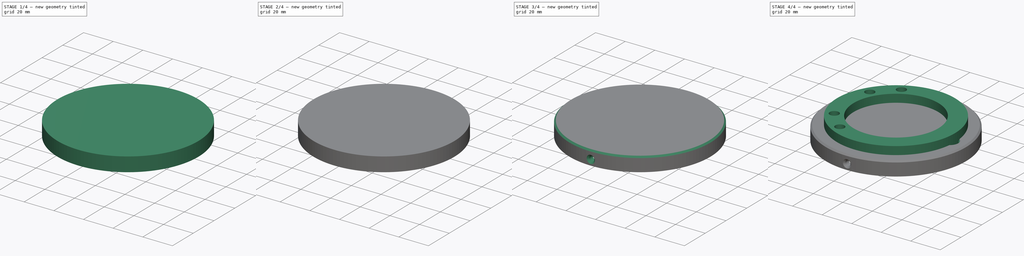
[diagram: build sequence overview — one tinted view per stage of 4, left to right]
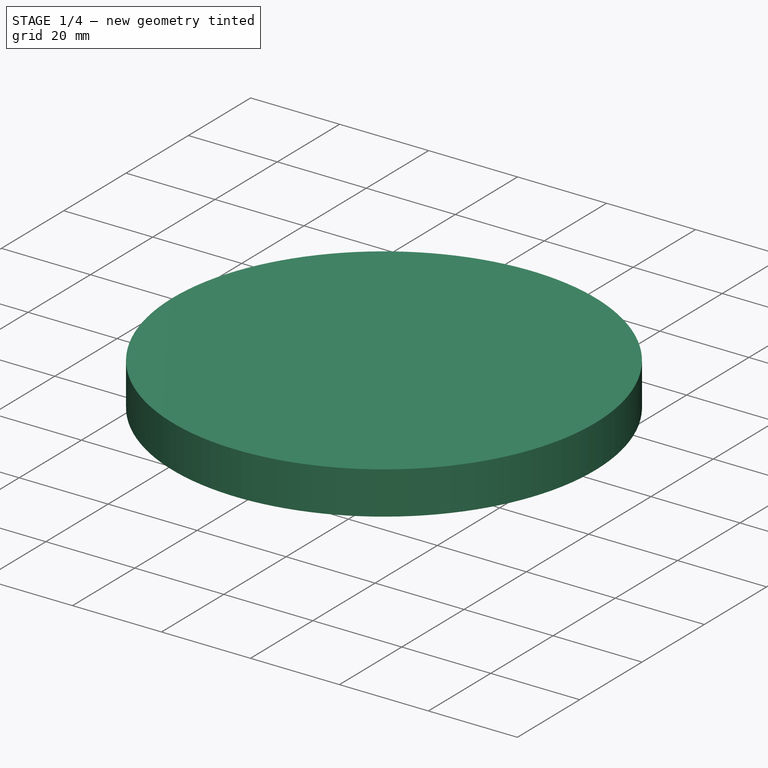
[diagram: stage 1 of 4 — iso view after this stage's code; geometry added in this stage tinted green]
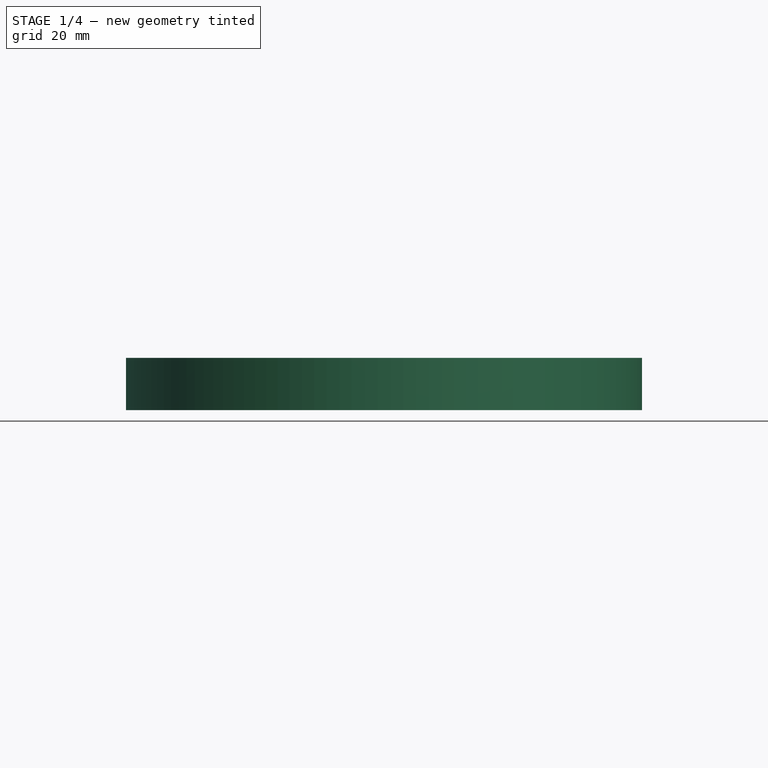
[diagram: stage 1 of 4 — front view after this stage's code; geometry added in this stage tinted green]
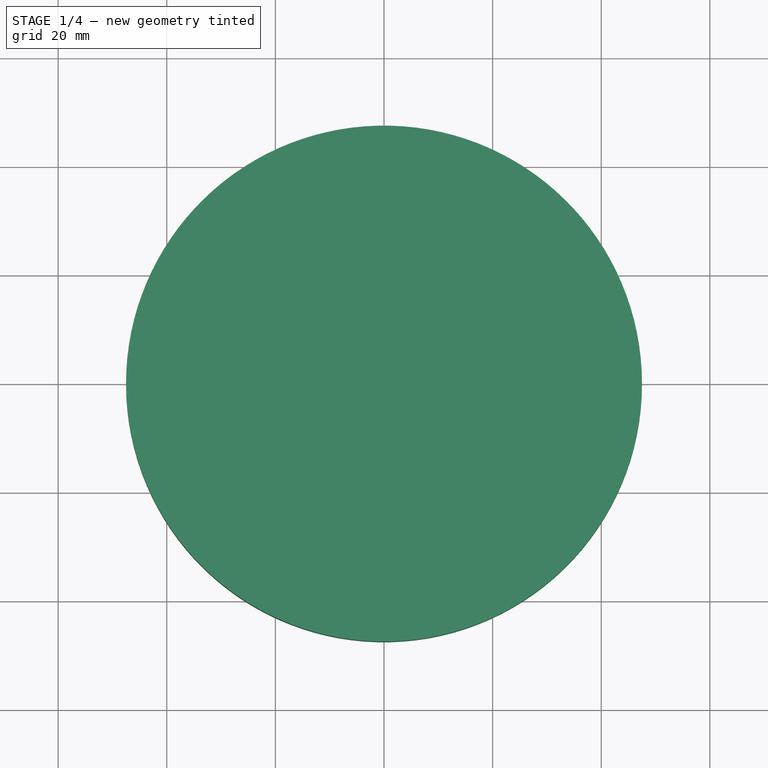
[diagram: stage 1 of 4 — top view after this stage's code; geometry added in this stage tinted green]
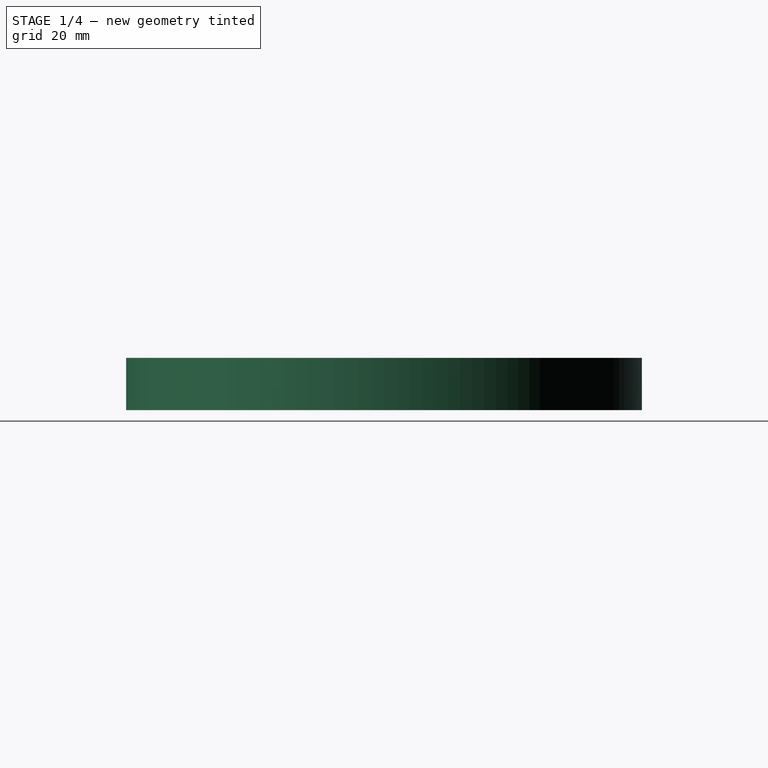
[diagram: stage 1 of 4 — right view after this stage's code; geometry added in this stage tinted green]
FCSTD DOCUMENT  (FreeCAD 1.0R39109 (Git))
Label: Bottom Layer Jig
License: All rights reserved
LicenseURL: https://en.wikipedia.org/wiki/All_rights_reserved
objects: Sketcher::SketchObject×9, PartDesign::Pocket×5, PartDesign::Chamfer×5, PartDesign::Plane×4, PartDesign::Pad×4, PartDesign::Body×2, App::VarSet×1
note: 66 computed .brp shape members not serialized (recipe doc carries the construction recipe); baked Part::Feature solids carry a one-line shape summary decoded from their .brp

FEATURE [PartDesign::Body] Body  label="ring_spacer"
  AllowCompound = false
  Group = -> [Sketch,Pad,DatumPlane001,Sketch011,Pocket003]
  Origin = -> Origin
  Placement = pos=(0,0,-12) rot=(0,0,1;0rad)
  Tip = -> Pocket003
FEATURE [App::VarSet] VarSet
  Pipe_thickness = 5
  dowel_dia = 6.2
  fillet_radius = 1.5
  gem_hole_dia = 15.5
  gem_hole_offset = 20
  mdf_thickness = 7.5
  pipe_OD = 90
  rotation_tolerence = 2.5
  servo_leg_height = 24
  servo_length = 23
  servo_width = 12.3
  shaft_width = 9
  test_tube_dia = 17
  tube_inner_dia = 79.9
FEATURE [Sketcher::SketchObject] Sketch012
  ArcFitTolerance = 1e-06
  AttachmentSupport = -> [XY_Plane001]
  FullyConstrained = true
  MakeInternals = false
  MapMode = 5
  expr: Constraints[1] = 95
  sketch-geometry (1):
    g0: Circle CenterX=0 CenterY=0 CenterZ=0 NormalX=0 NormalY=0 NormalZ=1 AngleXU=0 Radius=47.5
  constraints (2):
    c: Coincident(g0,g-1)
    c: Diameter(g0) = 95
FEATURE [PartDesign::Pad] Pad001
  Direction = (0,0,1)
  Length = 2
  Length2 = 10
  Profile = -> Sketch012
  ReferenceAxis = -> Sketch012 [N_Axis]
  Refine = true
  Suppressed = false
  Type = 0
FEATURE [Sketcher::SketchObject] Sketch013
  ArcFitTolerance = 1e-06
  AttachmentSupport = -> [Pad001]
  FullyConstrained = true
  MakeInternals = false
  MapMode = 5
  Placement = pos=(0,0,0) rot=(1,0,0;3.14159rad)
  expr: Constraints[21] = 61.6 mm
  expr: Constraints[3] = 36.875
  sketch-geometry (9):
    g0: Circle CenterX=-4e-16 CenterY=5e-16 CenterZ=0 NormalX=0 NormalY=0 NormalZ=1 AngleXU=0 Radius=30.8
    g1: Circle CenterX=-31.939 CenterY=18.44 CenterZ=0 NormalX=0 NormalY=0 NormalZ=1 AngleXU=0 Radius=2.8
    g2: Circle CenterX=-18.4375 CenterY=31.9347 CenterZ=0 NormalX=0 NormalY=0 NormalZ=1 AngleXU=0 Radius=2.8
    g3: Circle CenterX=-31.939 CenterY=-18.44 CenterZ=0 NormalX=0 NormalY=0 NormalZ=1 AngleXU=0 Radius=2.8
    g4: Circle CenterX=-18.44 CenterY=-31.939 CenterZ=0 NormalX=0 NormalY=0 NormalZ=1 AngleXU=0 Radius=2.8
    g5: LineSegment [constr] StartX=-18.4375 StartY=31.9347 StartZ=0 EndX=-4e-16 EndY=5e-16 EndZ=0
    g6: LineSegment [constr] StartX=-4e-16 StartY=5e-16 StartZ=0 EndX=-18.44 EndY=-31.939 EndZ=0
    g7: LineSegment [constr] StartX=-31.939 StartY=18.44 StartZ=0 EndX=1.8e-15 EndY=6e-16 EndZ=0
    g8: LineSegment [constr] StartX=-4e-16 StartY=5e-16 StartZ=0 EndX=-31.939 EndY=-18.44 EndZ=0
  constraints (22):
    c: Coincident(g0,g-1)
    c: Coincident(g5,g2)
    c: Coincident(g5,g0)
    c: Distance(g5,g5) = 36.875
    c: Angle(g5,g-1,g0) = 1.0472
    c: Coincident(g6,g0)
    c: Coincident(g6,g4)
    c: Distance(g6,g6) = 36.88
    c: Angle(g6,g-1) = 2.0944
    c: Coincident(g7,g1)
    c: Coincident(g7,g0)
    c: Coincident(g8,g0)
    c: Coincident(g8,g3)
    c: Distance(g7,g7) = 36.88
    c: Distance(g8,g8) = 36.88
    c: Angle(g8,g-1) = 2.61799
    c: Angle(g-1,g7) = 2.61799
    c: Diameter(g2) = 5.6
    c: Diameter(g1) = 5.6
    c: Diameter(g3) = 5.6
    c: Diameter(g4) = 5.6
    c: Diameter(g0) = 61.6
FEATURE [PartDesign::Pad] Pad002
  BaseFeature = -> Pad001
  Direction = (0,0,-1)
  Length = 4
  Length2 = 10
  Profile = -> Sketch013
  ReferenceAxis = -> Sketch013 [N_Axis]
  Refine = true
  Suppressed = false
  Type = 0
FEATURE [PartDesign::Chamfer] Chamfer
  Angle = 45
  Base = -> Pad002 [Edge14,Edge12,Edge10,Edge16,Edge18]
  BaseFeature = -> Pad002
  ChamferType = 0
  FlipDirection = false
  Refine = true
  Size = 1
  Size2 = 1
  SupportTransform = false
  Suppressed = false
  UseAllEdges = false
FEATURE [Sketcher::SketchObject] Sketch014
  ArcFitTolerance = 1e-06
  AttachmentSupport = -> [Chamfer]
  FullyConstrained = true
  MakeInternals = false
  MapMode = 5
  Placement = pos=(0,0,0) rot=(1,0,0;3.14159rad)
  sketch-geometry (2):
    g0: Circle CenterX=0 CenterY=0 CenterZ=0 NormalX=0 NormalY=0 NormalZ=1 AngleXU=0 Radius=42.95
    g1: Circle CenterX=0 CenterY=0 CenterZ=0 NormalX=0 NormalY=0 NormalZ=1 AngleXU=0 Radius=47.5
  constraints (4):
    c: Diameter(g0) = 85.9
    c: Coincident(g0,g-1)
    c: Diameter(g1) = 95
    c: Coincident(g1,g0)
FEATURE [PartDesign::Pad] Pad003
  BaseFeature = -> Chamfer
  Direction = (0,0,-1)
  Length = 7.6
  Length2 = 10
  Profile = -> Sketch014
  ReferenceAxis = -> Sketch014 [N_Axis]
  Refine = true
  Suppressed = false
  Type = 0
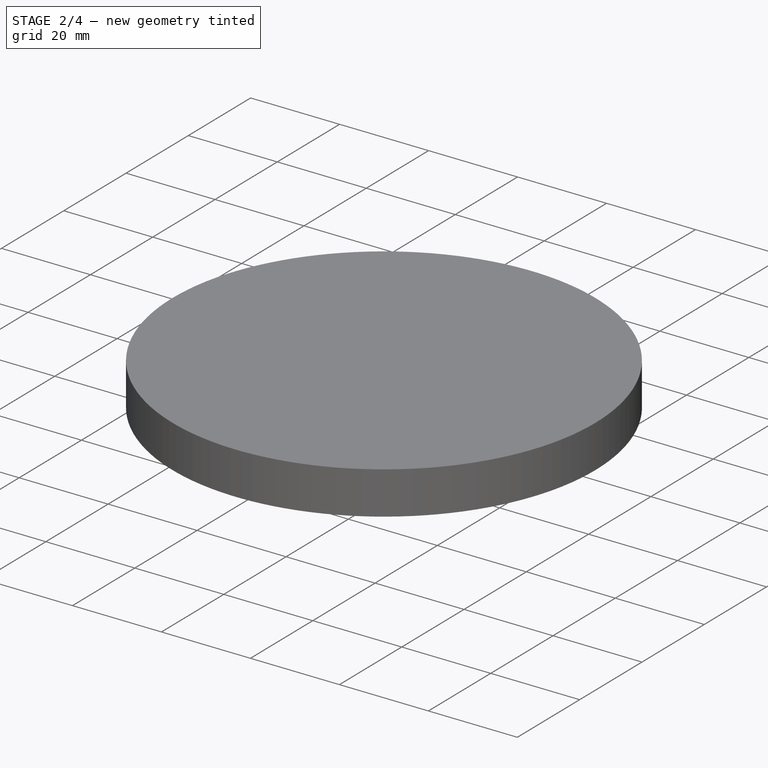
[diagram: stage 2 of 4 — iso view after this stage's code; geometry added in this stage tinted green]
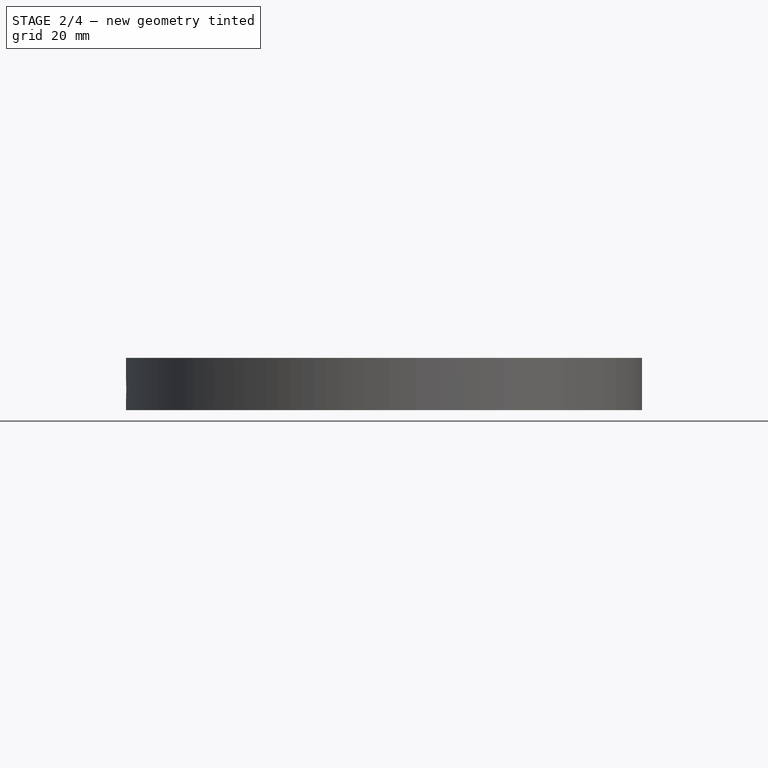
[diagram: stage 2 of 4 — front view after this stage's code; geometry added in this stage tinted green]
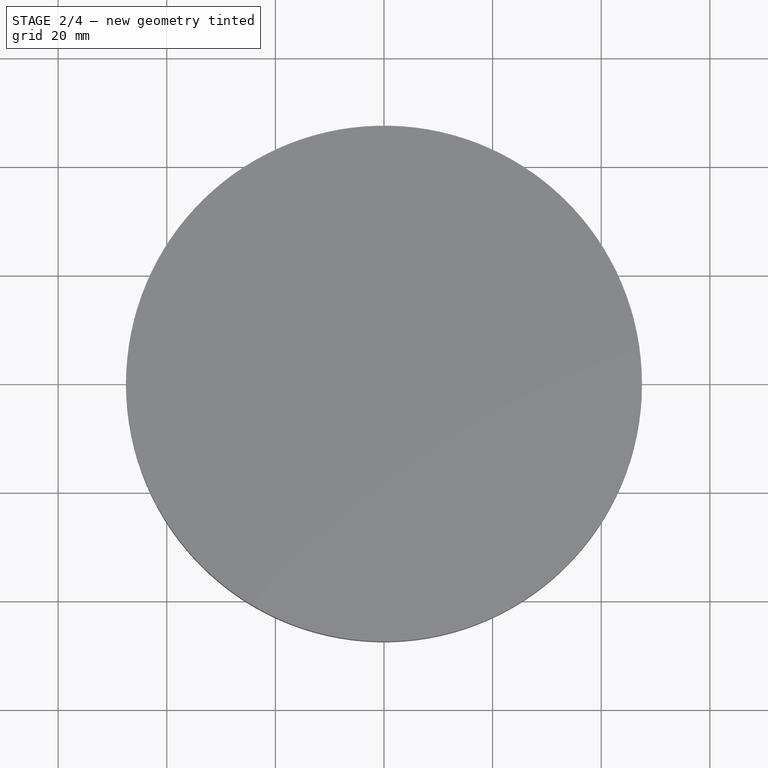
[diagram: stage 2 of 4 — top view after this stage's code; geometry added in this stage tinted green]
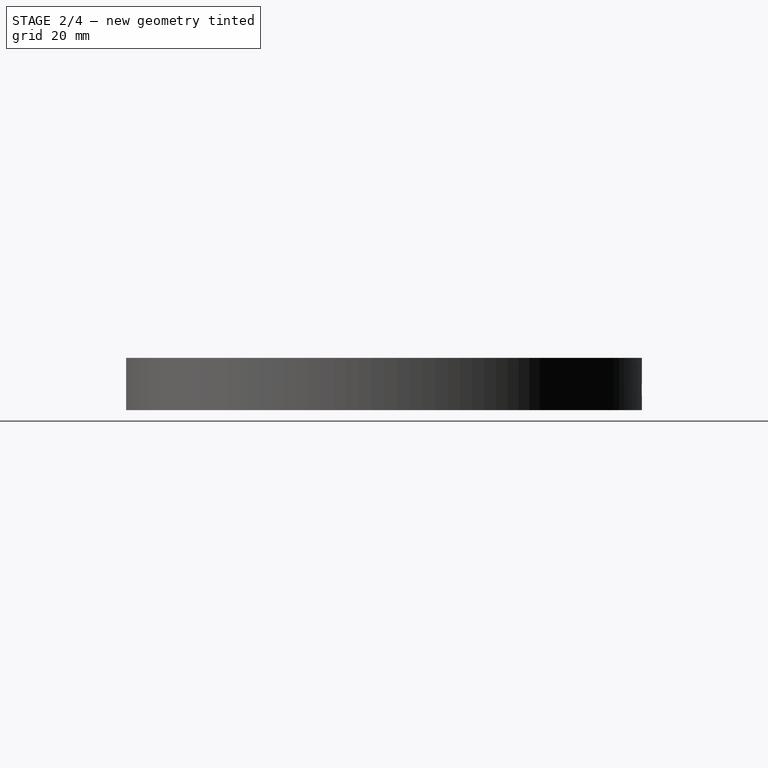
[diagram: stage 2 of 4 — right view after this stage's code; geometry added in this stage tinted green]
FEATURE [PartDesign::Chamfer] Chamfer001
  Angle = 45
  Base = -> Pad003 [Edge15]
  BaseFeature = -> Pad003
  ChamferType = 0
  FlipDirection = false
  Refine = true
  Size = 1
  Size2 = 1
  SupportTransform = false
  Suppressed = false
  UseAllEdges = false
FEATURE [PartDesign::Plane] DatumPlane
  AttachmentOffset = pos=(-50,0,0) rot=(0,1,0;1.5708rad)
  AttachmentSupport = -> [Chamfer001]
  Length = 60
  MapMode = 5
  Placement = pos=(-50,0,-7.6) rot=(0.707107,0,0.707107;3.14159rad)
  ResizeMode = 0
  Width = 60
FEATURE [PartDesign::Plane] DatumPlane002
  AttachmentOffset = pos=(0,50,0) rot=(1,0,0;1.5708rad)
  AttachmentSupport = -> [Chamfer001]
  Length = 60
  MapMode = 5
  Placement = pos=(0,-50,-7.6) rot=(1,0,0;4.71239rad)
  ResizeMode = 0
  Width = 60
FEATURE [PartDesign::Plane] DatumPlane003
  AttachmentOffset = pos=(0,-50,0) rot=(1,0,0;1.5708rad)
  AttachmentSupport = -> [Chamfer001]
  Length = 60
  MapMode = 5
  Placement = pos=(0,50,-7.6) rot=(1,0,0;4.71239rad)
  ResizeMode = 0
  Width = 60
FEATURE [Sketcher::SketchObject] Sketch015
  ArcFitTolerance = 1e-06
  AttachmentSupport = -> [DatumPlane]
  FullyConstrained = true
  MakeInternals = false
  MapMode = 5
  Placement = pos=(-50,0,-7.6) rot=(0.707107,0,0.707107;3.14159rad)
  expr: Constraints[2] = 3.8 mm
  sketch-geometry (1):
    g0: Circle CenterX=3.8 CenterY=0 CenterZ=0 NormalX=0 NormalY=0 NormalZ=1 AngleXU=0 Radius=1.75
  constraints (3):
    c: PointOnObject(g0,g-1)
    c: Diameter(g0) = 3.5
    c: DistanceX(g-1,g0) = 3.8
FEATURE [PartDesign::Pocket] Pocket
  BaseFeature = -> Chamfer001
  Direction = (-1,0,2e-16)
  Length = 15
  Length2 = 5
  Profile = -> Sketch015
  ReferenceAxis = -> Sketch015 [N_Axis]
  Refine = true
  Reversed = true
  Suppressed = false
  Type = 0
FEATURE [Sketcher::SketchObject] Sketch016
  ArcFitTolerance = 1e-06
  AttachmentSupport = -> [DatumPlane003]
  FullyConstrained = true
  MakeInternals = false
  MapMode = 5
  Placement = pos=(0,50,-7.6) rot=(-1,0,0;1.5708rad)
  sketch-geometry (1):
    g0: Circle CenterX=0 CenterY=-3.8 CenterZ=0 NormalX=0 NormalY=0 NormalZ=1 AngleXU=0 Radius=1.75
  constraints (3):
    c: Diameter(g0) = 3.5
    c: PointOnObject(g0,g-2)
    c: DistanceY(g0,g-1) = 3.8
FEATURE [PartDesign::Pocket] Pocket004
  BaseFeature = -> Pocket
  Direction = (0,-1,-2e-16)
  Length = 15
  Length2 = 5
  Profile = -> Sketch016
  ReferenceAxis = -> Sketch016 [N_Axis]
  Refine = true
  Suppressed = false
  Type = 0
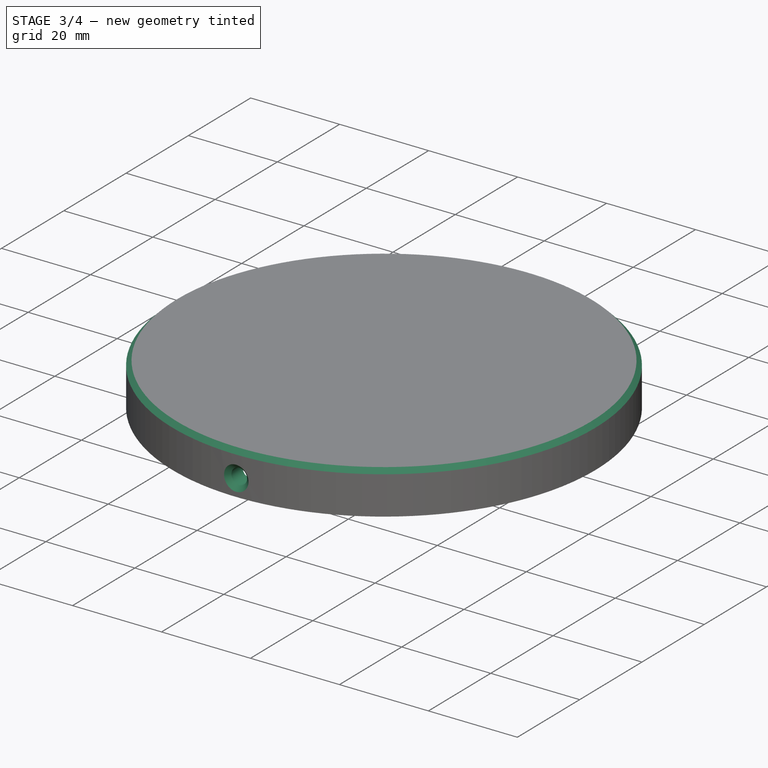
[diagram: stage 3 of 4 — iso view after this stage's code; geometry added in this stage tinted green]
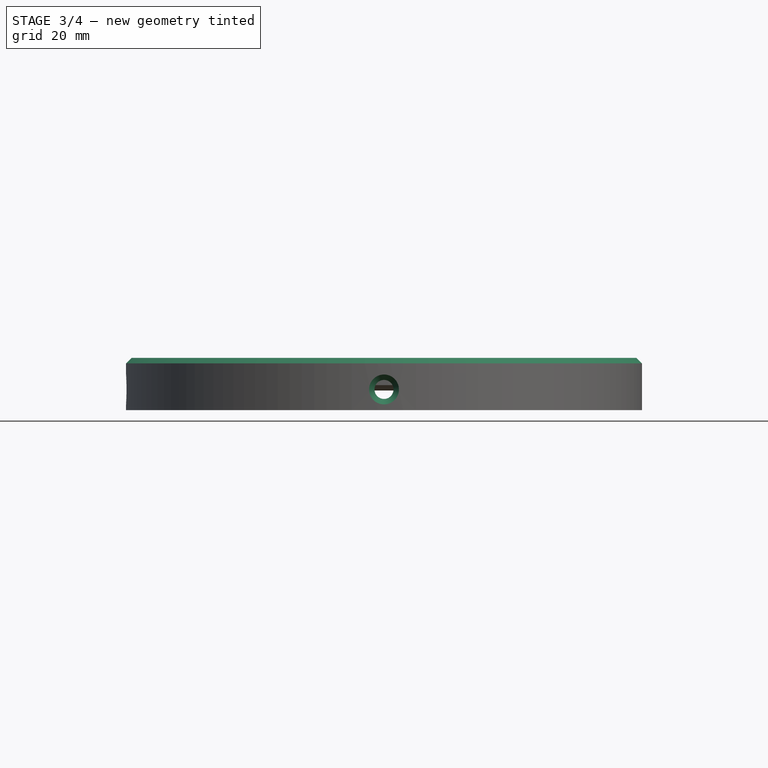
[diagram: stage 3 of 4 — front view after this stage's code; geometry added in this stage tinted green]
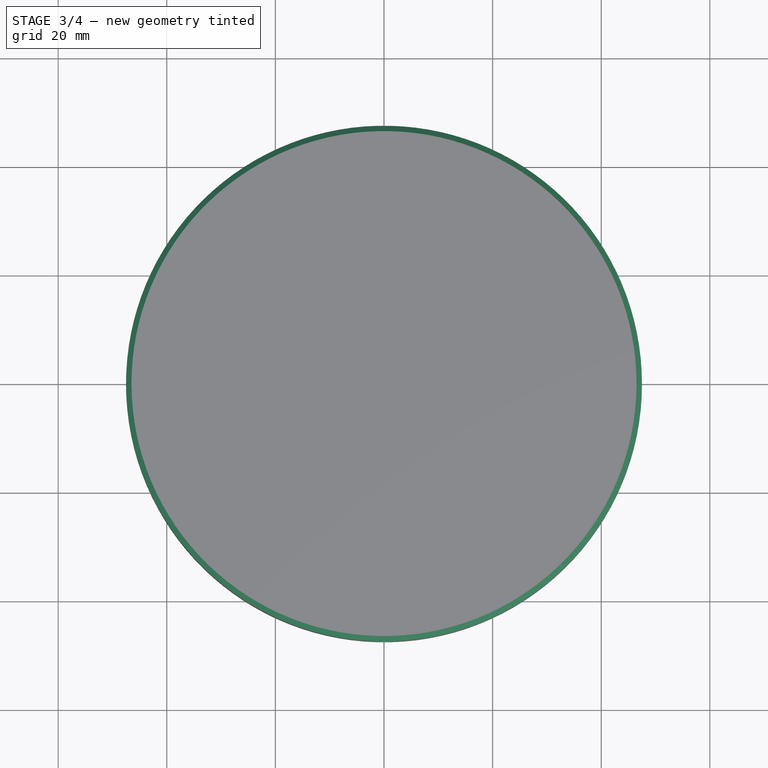
[diagram: stage 3 of 4 — top view after this stage's code; geometry added in this stage tinted green]
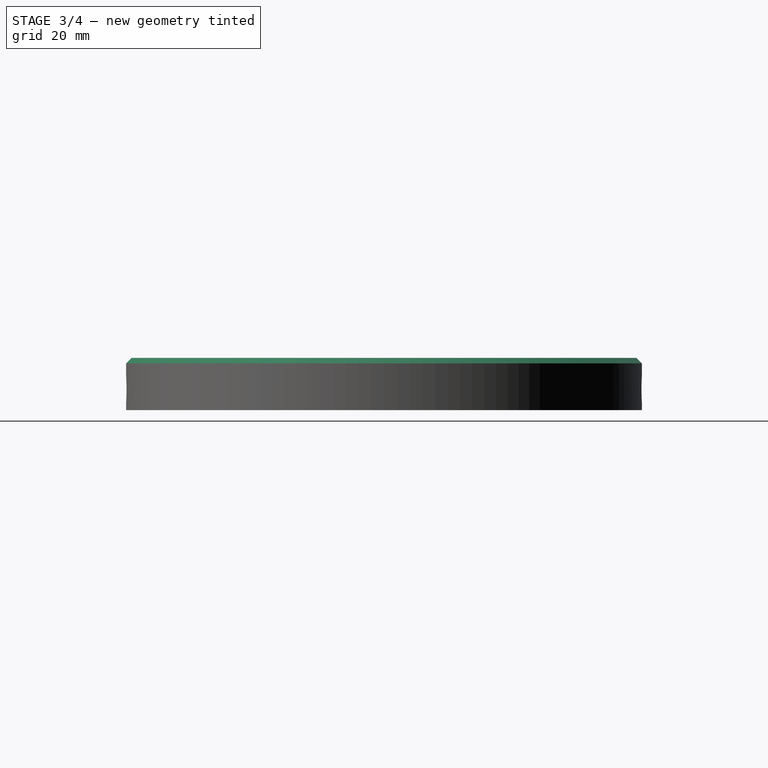
[diagram: stage 3 of 4 — right view after this stage's code; geometry added in this stage tinted green]
FEATURE [Sketcher::SketchObject] Sketch017
  ArcFitTolerance = 1e-06
  AttachmentSupport = -> [DatumPlane002]
  FullyConstrained = true
  MakeInternals = false
  MapMode = 5
  Placement = pos=(0,-50,-7.6) rot=(-1,0,0;1.5708rad)
  sketch-geometry (1):
    g0: Circle CenterX=0 CenterY=-3.8 CenterZ=0 NormalX=0 NormalY=0 NormalZ=1 AngleXU=0 Radius=1.75
  constraints (3):
    c: Diameter(g0) = 3.5
    c: PointOnObject(g0,g-2)
    c: DistanceY(g0,g-1) = 3.8
FEATURE [PartDesign::Pocket] Pocket005
  BaseFeature = -> Pocket004
  Direction = (0,-1,-2e-16)
  Length = 15
  Length2 = 5
  Profile = -> Sketch017
  ReferenceAxis = -> Sketch017 [N_Axis]
  Refine = true
  Reversed = true
  Suppressed = false
  Type = 0
FEATURE [PartDesign::Chamfer] Chamfer002
  Angle = 45
  Base = -> Pocket005 [Edge14,Edge16,Edge18]
  BaseFeature = -> Pocket005
  ChamferType = 0
  FlipDirection = false
  Refine = true
  Size = 1
  Size2 = 1
  SupportTransform = false
  Suppressed = false
  UseAllEdges = false
FEATURE [PartDesign::Chamfer] Chamfer003
  Angle = 45
  Base = -> Chamfer002 [Edge13]
  BaseFeature = -> Chamfer002
  ChamferType = 0
  FlipDirection = false
  Refine = true
  Size = 1
  Size2 = 1
  SupportTransform = false
  Suppressed = false
  UseAllEdges = false
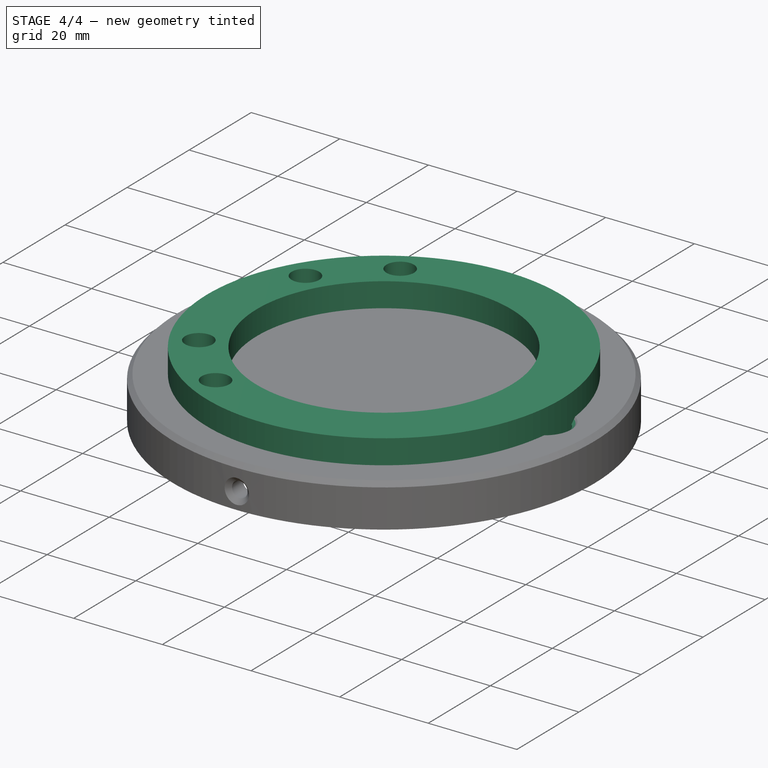
[diagram: stage 4 of 4 — iso view after this stage's code; geometry added in this stage tinted green]
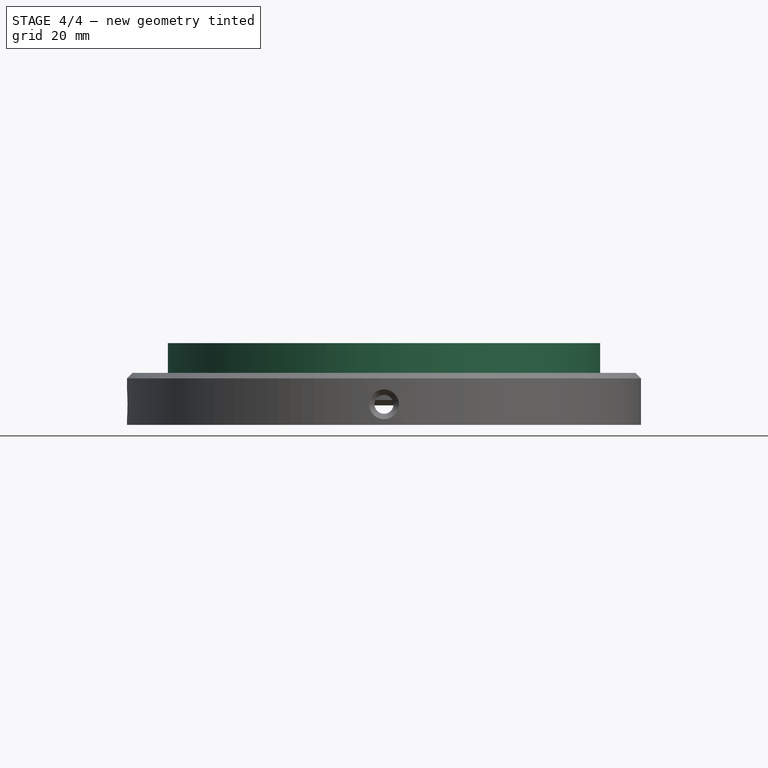
[diagram: stage 4 of 4 — front view after this stage's code; geometry added in this stage tinted green]
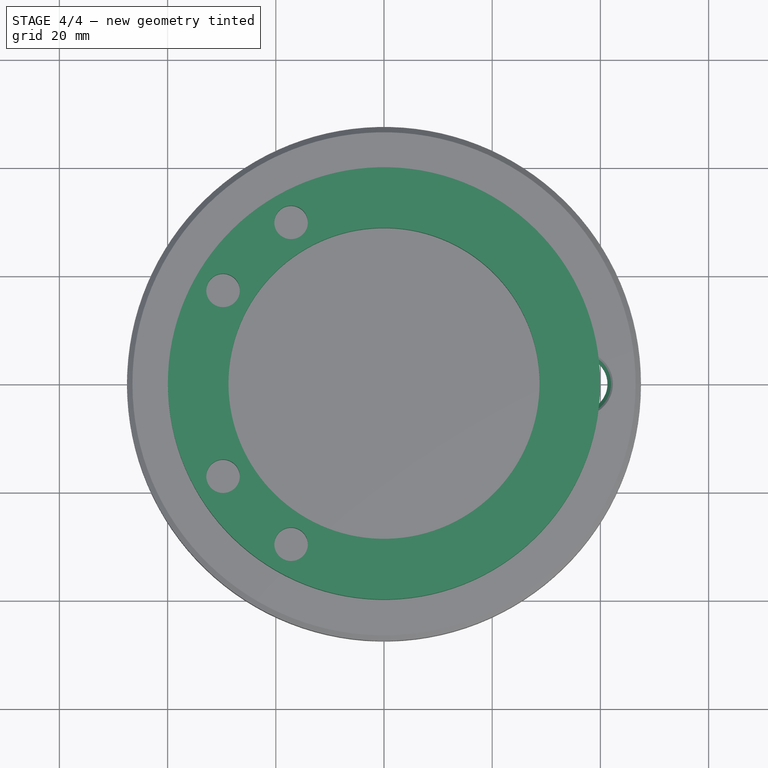
[diagram: stage 4 of 4 — top view after this stage's code; geometry added in this stage tinted green]
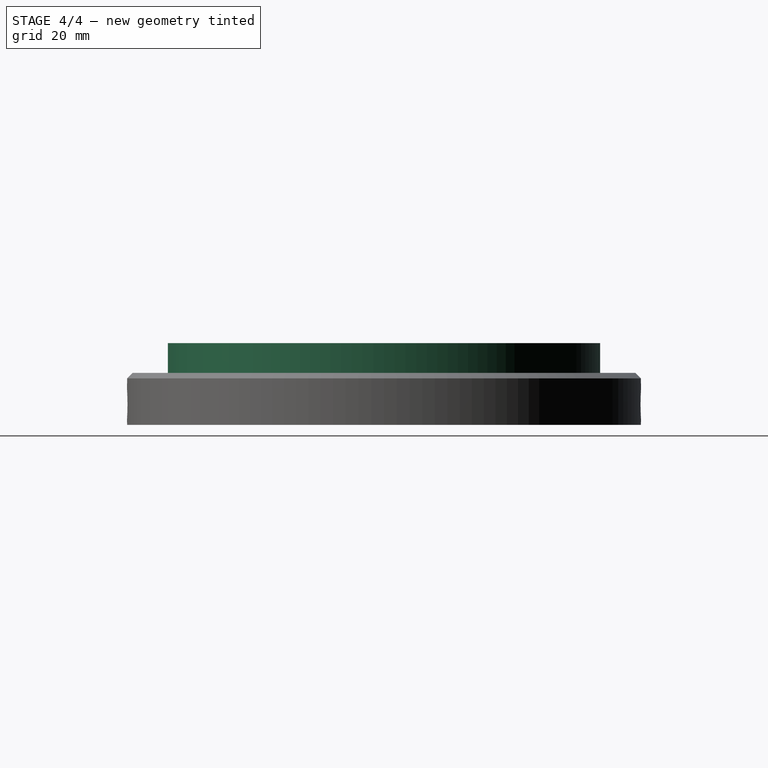
[diagram: stage 4 of 4 — right view after this stage's code; geometry added in this stage tinted green]
FEATURE [PartDesign::Plane] DatumPlane001
  AttachmentOffset = pos=(0,0,7.5) rot=(0,0,1;0rad)
  AttachmentSupport = -> [XY_Plane]
  Length = 95.8527
  MapMode = 5
  Placement = pos=(0,0,7.5) rot=(0,0,1;0rad)
  ResizeMode = 0
  Width = 95.5798
  expr: .AttachmentOffset.Base.z = VarSet.mdf_thickness
FEATURE [Sketcher::SketchObject] Sketch
  ArcFitTolerance = 1e-06
  AttachmentSupport = -> [XY_Plane]
  FullyConstrained = true
  MakeInternals = false
  MapMode = 5
  expr: Constraints[1] = VarSet.tube_inner_dia
  expr: Constraints[3] = VarSet.dowel_dia + 5 mm
  sketch-geometry (2):
    g0: Circle CenterX=0 CenterY=0 CenterZ=0 NormalX=0 NormalY=0 NormalZ=1 AngleXU=0 Radius=39.95
    g1: Circle CenterX=0 CenterY=0 CenterZ=0 NormalX=0 NormalY=0 NormalZ=1 AngleXU=0 Radius=28.75
  constraints (4):
    c: Coincident(g0,g-1)
    c: Diameter(g0) = 79.9
    c: Coincident(g1,g0)
    c: Distance(g1,g0) = 11.2
FEATURE [PartDesign::Pad] Pad
  Direction = (0,0,1)
  Length = 7.5
  Length2 = 10
  Profile = -> Sketch
  ReferenceAxis = -> Sketch [N_Axis]
  Refine = true
  Suppressed = false
  Type = 0
  expr: Length = VarSet.mdf_thickness
FEATURE [Sketcher::SketchObject] Sketch011
  ArcFitTolerance = 1e-06
  AttachmentSupport = -> [DatumPlane001]
  FullyConstrained = true
  MakeInternals = false
  MapMode = 5
  Placement = pos=(0,0,7.5) rot=(0,0,1;0rad)
  expr: Constraints[17] = VarSet.tube_inner_dia / 2 - 2.5 mm - VarSet.dowel_dia / 2
  expr: Constraints[1] = VarSet.dowel_dia
  expr: Constraints[2] = VarSet.tube_inner_dia / 2 - 2.5 mm - VarSet.dowel_dia / 2
  expr: Constraints[6] = VarSet.tube_inner_dia / 2 - 2.5 mm - VarSet.dowel_dia / 2
  sketch-geometry (8):
    g0: Circle [constr] CenterX=-34.35 CenterY=0 CenterZ=0 NormalX=0 NormalY=0 NormalZ=1 AngleXU=0 Radius=3.1
    g1: Circle CenterX=-29.748 CenterY=17.175 CenterZ=0 NormalX=0 NormalY=0 NormalZ=1 AngleXU=0 Radius=3.1
    g2: Circle CenterX=-29.748 CenterY=-17.175 CenterZ=0 NormalX=0 NormalY=0 NormalZ=1 AngleXU=0 Radius=3.1
    g3: LineSegment [constr] StartX=-29.748 StartY=-17.175 StartZ=0 EndX=-4.1e-15 EndY=-4.3e-15 EndZ=0
    g4: Circle CenterX=-17.175 CenterY=29.748 CenterZ=0 NormalX=0 NormalY=0 NormalZ=1 AngleXU=0 Radius=3.1
    g5: Circle CenterX=-17.175 CenterY=-29.748 CenterZ=0 NormalX=0 NormalY=0 NormalZ=1 AngleXU=0 Radius=3.1
    g6: LineSegment [constr] StartX=-17.175 StartY=29.748 StartZ=0 EndX=-3.8e-15 EndY=-4.1e-15 EndZ=0
    g7: LineSegment [constr] StartX=-4.1e-15 StartY=-4.3e-15 StartZ=0 EndX=-17.175 EndY=-29.748 EndZ=0
  constraints (19):
    c: PointOnObject(g0,g-1)
    c: Diameter(g0) = 6.2
    c: Distance(g0,g-2) = 34.35
    c: Equal(g1,g2)
    c: Equal(g2,g0)
    c: Symmetric(g2,g1,g-1)
    c: Distance(g1,g-1) = 34.35
    c: Coincident(g3,g2)
    c: Coincident(g3,g-1)
    c: Angle(g-1,g3) = 0.523599
    c: Equal(g5,g4)
    c: Equal(g4,g2)
    c: Symmetric(g5,g4,g-1)
    c: Coincident(g6,g4)
    c: Coincident(g6,g3)
    c: Coincident(g7,g3)
    c: Coincident(g7,g5)
    c: Distance(g6,g6) = 34.35
    c: Angle(g6,g-1) = 1.0472
FEATURE [PartDesign::Pocket] Pocket003
  BaseFeature = -> Pad
  Direction = (0,0,-1)
  Length = 5
  Length2 = 5
  Profile = -> Sketch011
  ReferenceAxis = -> Sketch011 [N_Axis]
  Refine = true
  Suppressed = false
  Type = 1
FEATURE [Sketcher::SketchObject] Sketch018
  ArcFitTolerance = 1e-06
  AttachmentSupport = -> [Chamfer003]
  FullyConstrained = true
  MakeInternals = false
  MapMode = 5
  Placement = pos=(0,0,0) rot=(1,0,0;3.14159rad)
  sketch-geometry (1):
    g0: Circle CenterX=36.3 CenterY=0 CenterZ=0 NormalX=0 NormalY=0 NormalZ=1 AngleXU=0 Radius=5
  constraints (3):
    c: Diameter(g0) = 10
    c: PointOnObject(g0,g-1)
    c: DistanceX(g-1,g0) = 36.3
FEATURE [PartDesign::Pocket] Pocket006
  BaseFeature = -> Chamfer003
  Direction = (0,0,1)
  Length = 5
  Length2 = 5
  Profile = -> Sketch018
  ReferenceAxis = -> Sketch018 [N_Axis]
  Refine = true
  Suppressed = false
  Type = 0
FEATURE [PartDesign::Chamfer] Chamfer004
  Angle = 45
  Base = -> Pocket006 [Edge16]
  BaseFeature = -> Pocket006
  ChamferType = 0
  FlipDirection = false
  Refine = true
  Size = 1
  Size2 = 1
  SupportTransform = false
  Suppressed = false
  UseAllEdges = false
FEATURE [PartDesign::Body] Body001  label="Jig"
  AllowCompound = false
  Group = -> [Sketch012,Pad001,Sketch013,Pad002,Chamfer,Sketch014,Pad003,Chamfer001,DatumPlane,DatumPlane002,DatumPlane003,Sketch015,Pocket,Sketch016,Pocket004,Sketch017,Pocket005,Chamfer002,Chamfer003,Sketch018,Pocket006,Chamfer004]
  Origin = -> Origin001
  Tip = -> Chamfer004
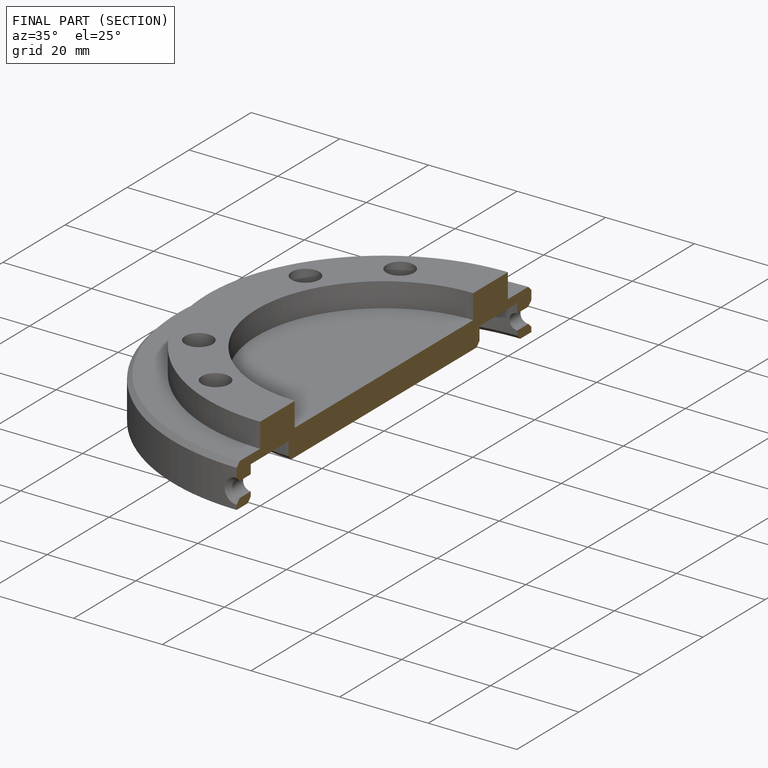
[diagram: finished part — half-section view (interior)]
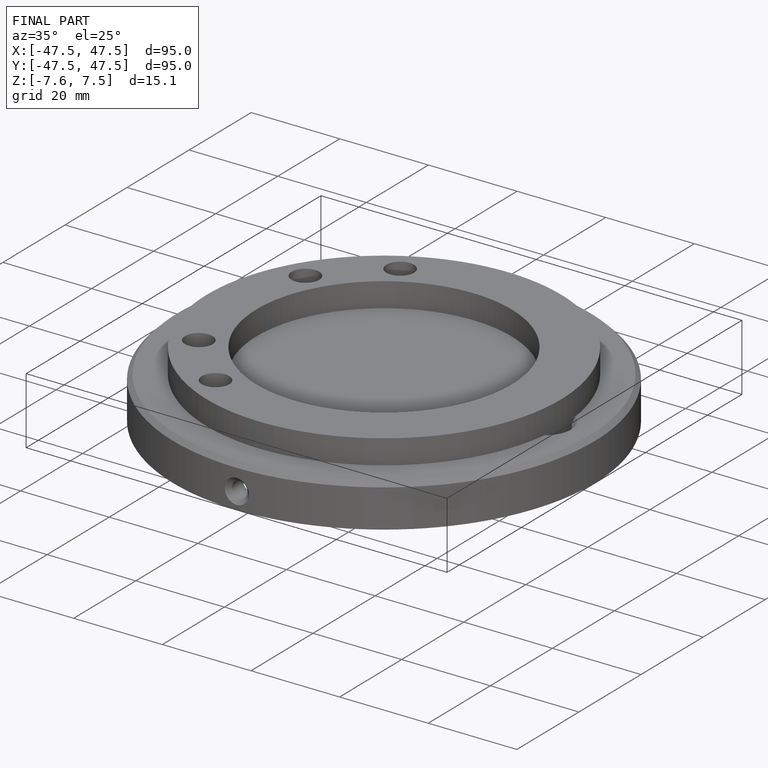
[diagram: finished part — iso view with bounding-box wireframe]
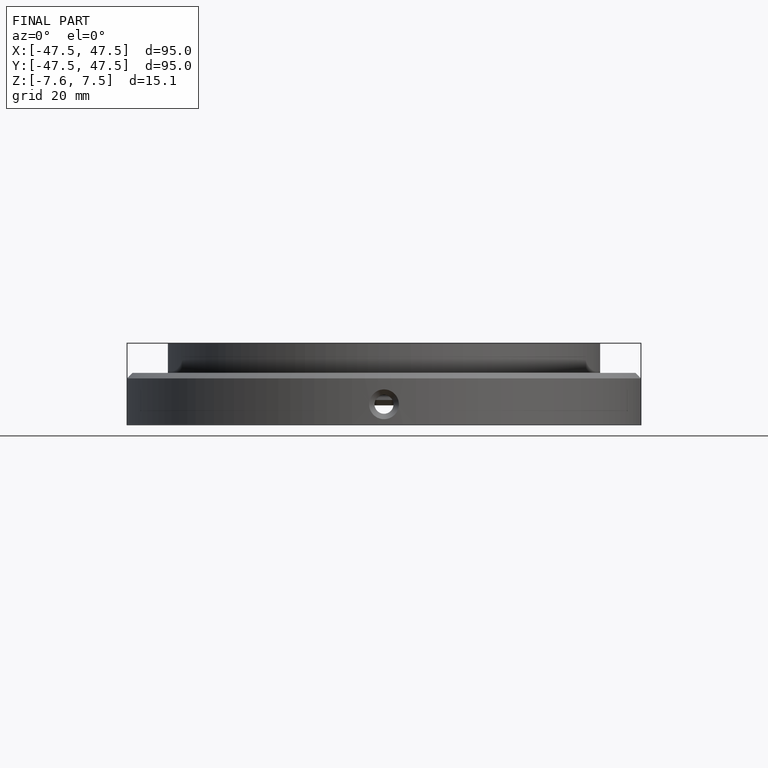
[diagram: finished part — front view with bounding-box wireframe]
